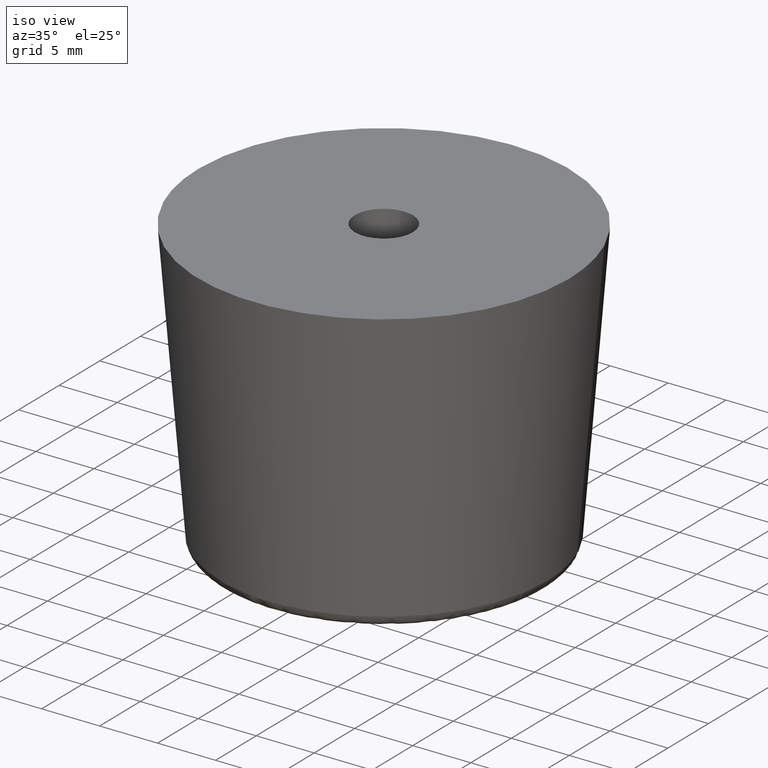
[diagram: clean part render]
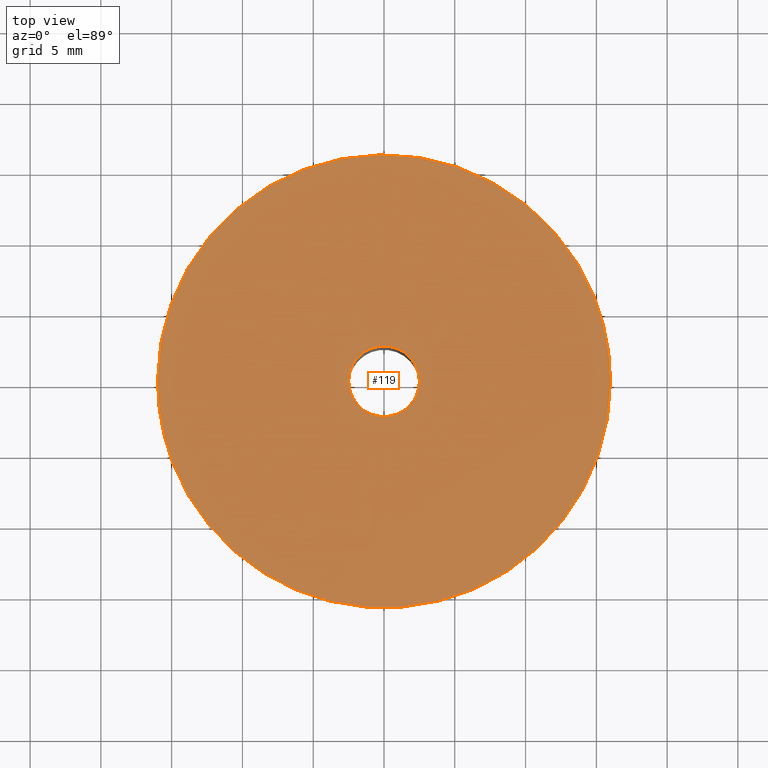
[diagram: tour spotlight — one face highlighted and labeled with its STEP entity id]
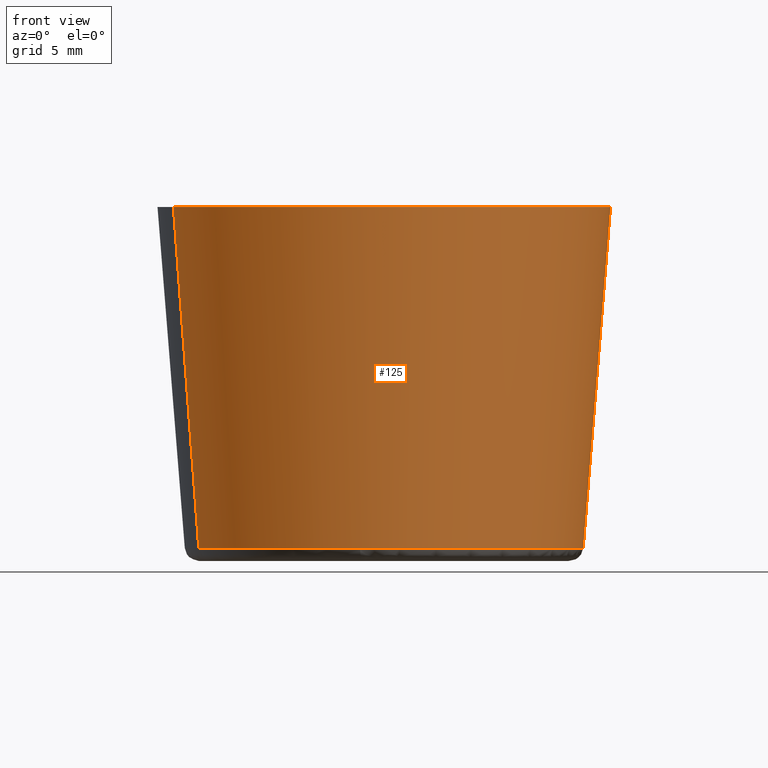
[diagram: tour spotlight — one face highlighted and labeled with its STEP entity id]
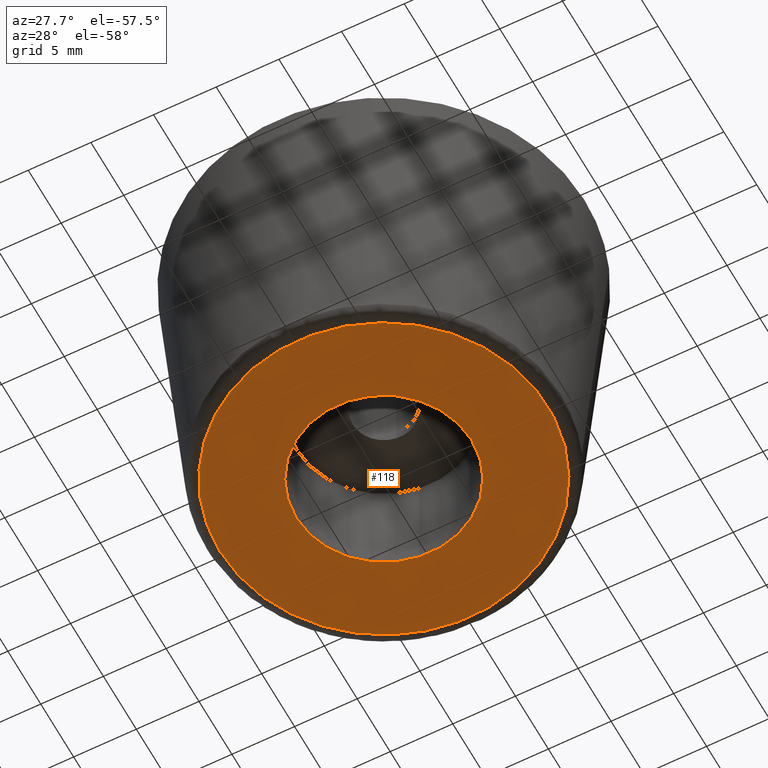
[diagram: tour spotlight — one face highlighted and labeled with its STEP entity id]
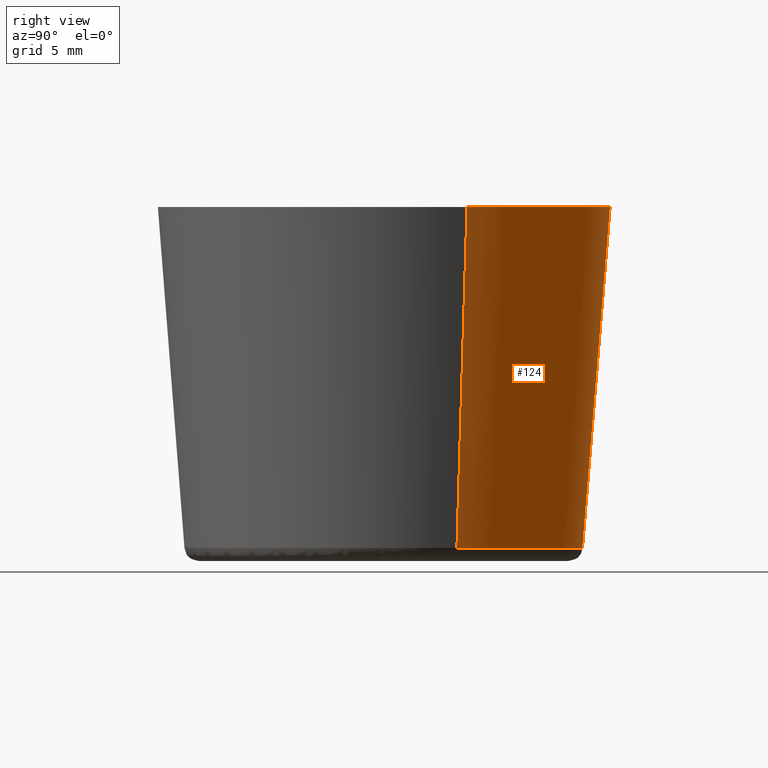
[diagram: tour spotlight — one face highlighted and labeled with its STEP entity id]
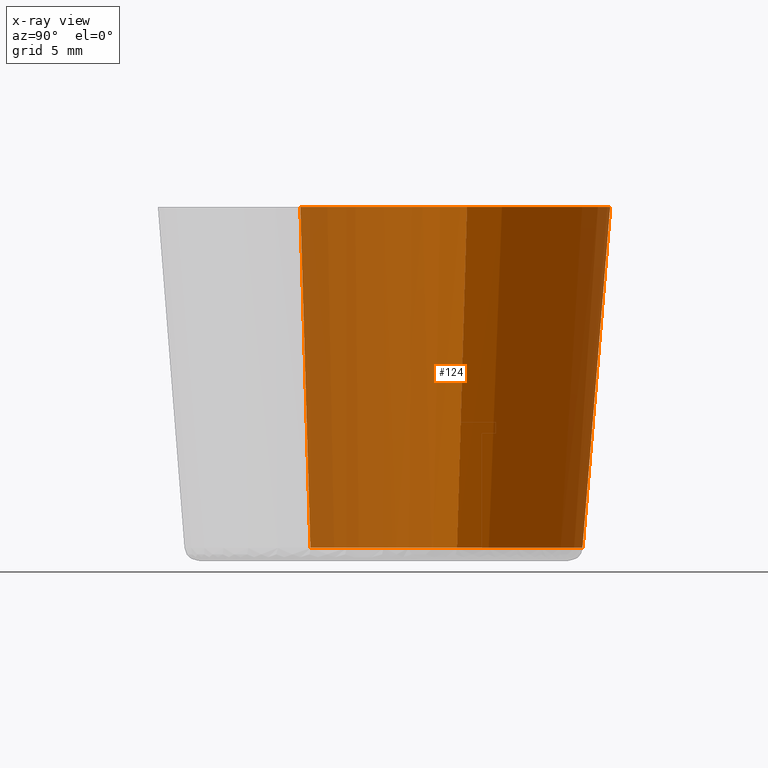
[diagram: x-ray of the same camera — body ghosted, this tour face saturated]
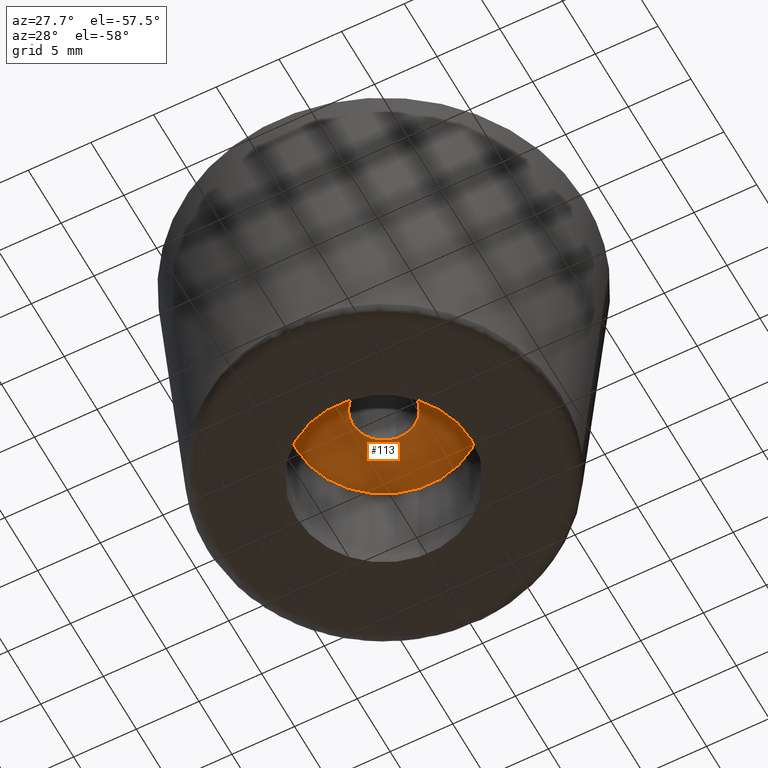
[diagram: tour spotlight — one face highlighted and labeled with its STEP entity id]
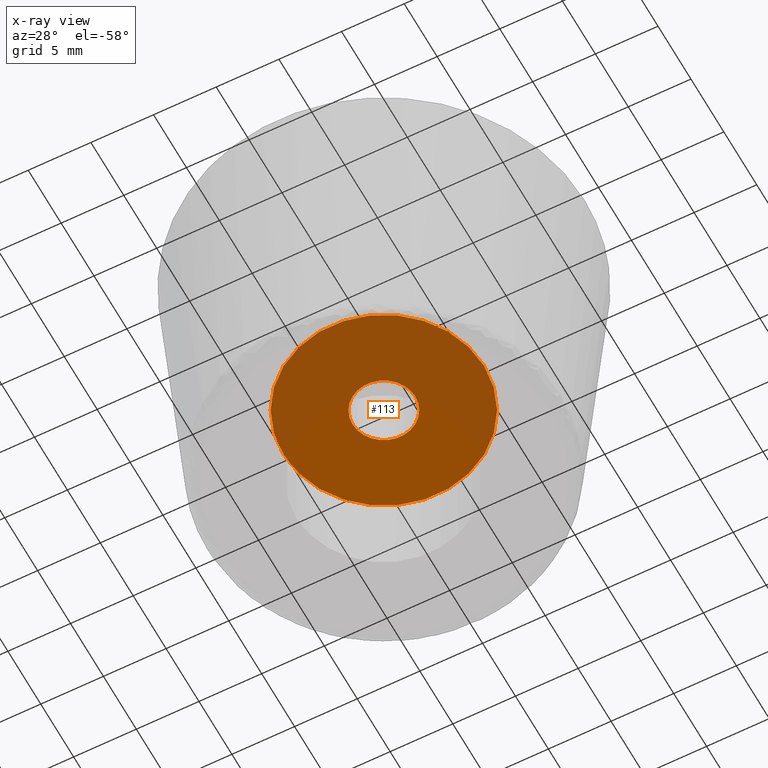
[diagram: x-ray of the same camera — body ghosted, this tour face saturated]
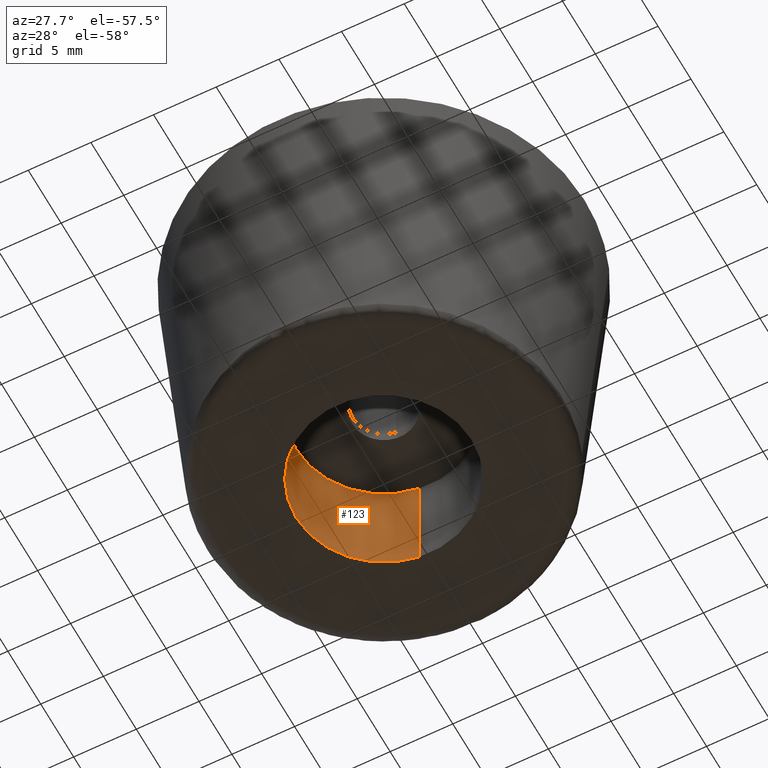
[diagram: tour spotlight — one face highlighted and labeled with its STEP entity id]
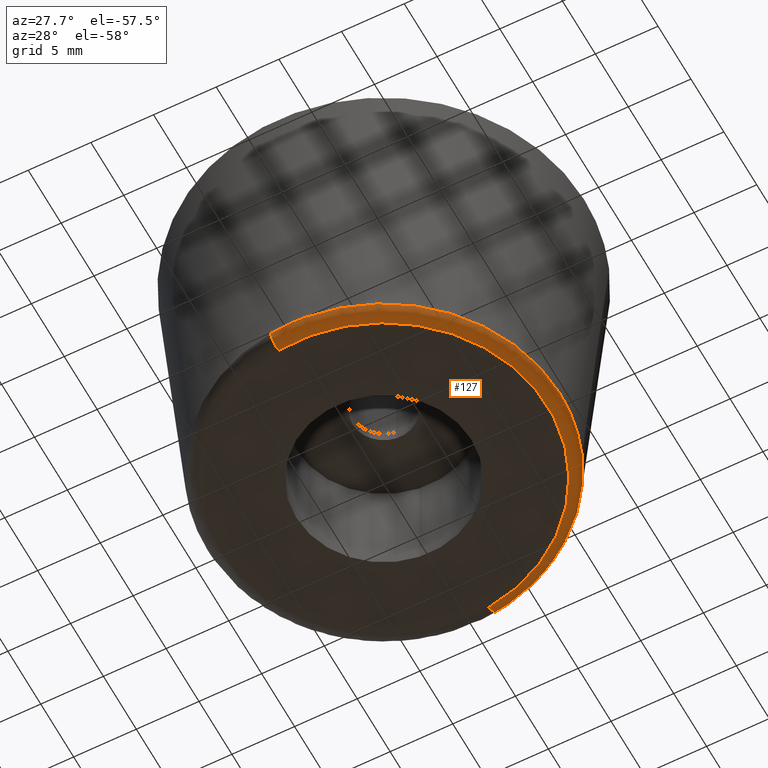
[diagram: tour spotlight — one face highlighted and labeled with its STEP entity id]
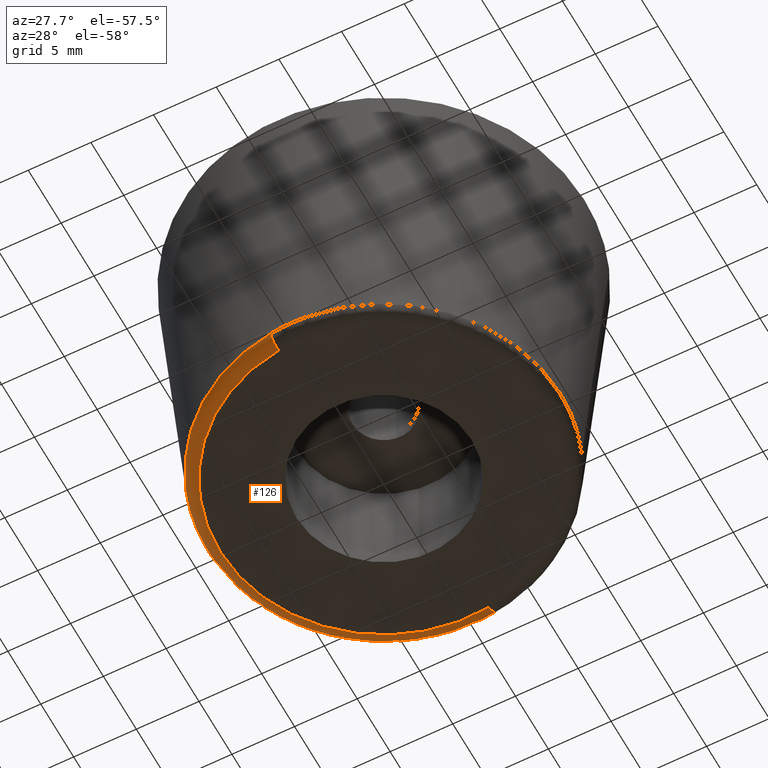
[diagram: tour spotlight — one face highlighted and labeled with its STEP entity id]
A machine part: a face-by-face anatomy tour. The part has 20 B-rep faces; the first image is the clean iso view, then the 8 largest visible faces are spotlighted one at a time (largest first), each with its STEP entity span.

Face 1 — top view, entity #119. In plain terms, the highlighted planar face has unit normal (0, 0, -1).
Definition (entity closure, byte-faithful):
#119=ADVANCED_FACE('',(#206,#207),#205,.F.);
#205=PLANE('',#379);
#206=FACE_OUTER_BOUND('',#380,.T.);
#207=FACE_BOUND('',#381,.T.);
#376=CARTESIAN_POINT('',(1.92000000000E+001,-2.01659269239E+001,2.50000000000E+001));
#377=DIRECTION('',(0.00000000000E+000,0.00000000000E+000,-1.00000000000E+000));
#378=DIRECTION('',(-1.00000000000E+000,0.00000000000E+000,0.00000000000E+000));
#379=AXIS2_PLACEMENT_3D('',#376,#377,#378);
#380=EDGE_LOOP('',(#536,#537,#538,#539,#540));
#381=EDGE_LOOP('',(#541,#542,#543));
#536=ORIENTED_EDGE('',*,*,#640,.F.);
#537=ORIENTED_EDGE('',*,*,#641,.F.);
#538=ORIENTED_EDGE('',*,*,#642,.F.);
#539=ORIENTED_EDGE('',*,*,#643,.F.);
#540=ORIENTED_EDGE('',*,*,#644,.F.);
#541=ORIENTED_EDGE('',*,*,#645,.T.);
#542=ORIENTED_EDGE('',*,*,#646,.T.);
#543=ORIENTED_EDGE('',*,*,#647,.T.);
#640=EDGE_CURVE('',#828,#829,#830,.T.);
#641=EDGE_CURVE('',#836,#828,#837,.T.);
#642=EDGE_CURVE('',#843,#836,#844,.T.);
#643=EDGE_CURVE('',#850,#843,#851,.T.);
#644=EDGE_CURVE('',#829,#850,#857,.T.);
#645=EDGE_CURVE('',#863,#864,#865,.T.);
#646=EDGE_CURVE('',#864,#871,#872,.T.);
#647=EDGE_CURVE('',#871,#863,#878,.T.);
#828=VERTEX_POINT('',#1182);
#829=VERTEX_POINT('',#1183);
#830=CIRCLE('',#1187,1.59999998255E+001);
#836=VERTEX_POINT('',#1188);
#837=CIRCLE('',#1192,1.59999997001E+001);
#843=VERTEX_POINT('',#1193);
#844=CIRCLE('',#1197,1.59999998620E+001);
#850=VERTEX_POINT('',#1198);
#851=CIRCLE('',#1202,1.60000000000E+001);
#857=CIRCLE('',#1206,1.60000000000E+001);
#863=VERTEX_POINT('',#1207);
#864=VERTEX_POINT('',#1208);
#865=CIRCLE('',#1212,2.50000000000E+000);
#871=VERTEX_POINT('',#1213);
#872=CIRCLE('',#1217,2.50000000000E+000);
#878=CIRCLE('',#1221,2.50000000000E+000);
#1182=CARTESIAN_POINT('',(-1.48778326349E+001,-5.88643275118E+000,2.49999978305E+001));
#1183=CARTESIAN_POINT('',(-1.60000000000E+001,0.00000000000E+000,2.50000000000E+001));
#1184=CARTESIAN_POINT('',(-1.74479442450E-007,4.38500372013E-007,2.49999989152E+001));
#1185=DIRECTION('',(-6.77973794369E-008,3.55637597805E-007,-1.00000000000E+000));
#1186=DIRECTION('',(9.29864538916E-001,3.67902078367E-001,6.77974324081E-008));
#1187=AXIS2_PLACEMENT_3D('',#1184,#1185,#1186);
#1188=CARTESIAN_POINT('',(1.25533634580E+000,-1.59506779035E+001,2.49999980163E+001));
#1189=CARTESIAN_POINT('',(-7.74154464978E-008,-1.47733397071E-007,2.49999979234E+001));
#1190=DIRECTION('',(8.29286189888E-009,-5.17328107062E-009,-1.00000000000E+000));
#1191=DIRECTION('',(-7.84585279213E-002,9.96917378420E-001,-5.80797953959E-009));
#1192=AXIS2_PLACEMENT_3D('',#1189,#1190,#1191);
#1193=CARTESIAN_POINT('',(1.60000000000E+001,0.00000000000E+000,2.50000000000E+001));
#1194=CARTESIAN_POINT('',(1.37992753224E-007,3.16270396539E-008,2.49999990082E+001));
#1195=DIRECTION('',(6.19894182662E-008,6.70597369245E-008,-1.00000000000E+000));
#1196=DIRECTION('',(-1.00000000000E+000,1.97668999541E-009,-6.19894181337E-008));
#1197=AXIS2_PLACEMENT_3D('',#1194,#1195,#1196);
#1198=CARTESIAN_POINT('',(1.48778292665E+001,5.88644173650E+000,2.50000000000E+001));
#1199=CARTESIAN_POINT('',(0.00000000000E+000,0.00000000000E+000,2.50000000000E+001));
#1200=DIRECTION('',(-0.00000000000E+000,-7.85046229342E-017,-1.00000000000E+000));
#1201=DIRECTION('',(1.00000000000E+000,-0.00000000000E+000,-0.00000000000E+000));
#1202=AXIS2_PLACEMENT_3D('',#1199,#1200,#1201);
#1203=CARTESIAN_POINT('',(0.00000000000E+000,0.00000000000E+000,2.50000000000E+001));
#1204=DIRECTION('',(-0.00000000000E+000,-7.85046229342E-017,-1.00000000000E+000));
#1205=DIRECTION('',(1.00000000000E+000,-0.00000000000E+000,-0.00000000000E+000));
#1206=AXIS2_PLACEMENT_3D('',#1203,#1204,#1205);
#1207=CARTESIAN_POINT('',(-2.50000000000E+000,4.44089209850E-016,2.50000000000E+001));
#1208=CARTESIAN_POINT('',(-2.95514653005E-001,2.48247277726E+000,2.50000000000E+001));
#1209=CARTESIAN_POINT('',(1.11022302463E-015,6.66133814775E-016,2.50000000000E+001));
#1210=DIRECTION('',(7.18398078852E-014,1.28325185401E-014,-1.00000000000E+000));
#1211=DIRECTION('',(-1.00000000000E+000,2.77555756156E-016,-7.18398078852E-014));
#1212=AXIS2_PLACEMENT_3D('',#1209,#1210,#1211);
#1213=CARTESIAN_POINT('',(2.95084678797E-001,-2.48252392382E+000,2.50000000000E+001));
#1214=CARTESIAN_POINT('',(1.11022302463E-015,6.66133814775E-016,2.50000000000E+001));
#1215=DIRECTION('',(7.18398078852E-014,1.28325185401E-014,-1.00000000000E+000));
#1216=DIRECTION('',(-1.00000000000E+000,2.77555756156E-016,-7.18398078852E-014));
#1217=AXIS2_PLACEMENT_3D('',#1214,#1215,#1216);
#1218=CARTESIAN_POINT('',(1.11022302463E-015,6.66133814775E-016,2.50000000000E+001));
#1219=DIRECTION('',(7.18398078852E-014,1.28325185401E-014,-1.00000000000E+000));
#1220=DIRECTION('',(-1.00000000000E+000,2.77555756156E-016,-7.18398078852E-014));
#1221=AXIS2_PLACEMENT_3D('',#1218,#1219,#1220);

Face 2 — front view, entity #125. In plain terms, the highlighted face is a freeform B-spline surface patch.
Definition (entity closure, byte-faithful):
#125=ADVANCED_FACE('',(#269),#268,.T.);
#268=( BOUNDED_SURFACE() B_SPLINE_SURFACE( 2,1,((#415,#416),(#417,#418),(#419,#420),(#421,#422),(#423,#424)), .UNSPECIFIED.,.F.,.F.,.F.) B_SPLINE_SURFACE_WITH_KNOTS((3,2,3),(2,2),(0.00000000000E+000,5.00000000000E-001,1.00000000000E+000),(0.00000000000E+000,1.00000000000E+000), .UNSPECIFIED. ) GEOMETRIC_REPRESENTATION_ITEM() RATIONAL_B_SPLINE_SURFACE(((1.00000000000E+000,1.00000000000E+000),(7.07106781187E-001,7.07106781187E-001),(1.00000000000E+000,1.00000000000E+000),(7.07106781187E-001,7.07106781187E-001),(1.00000000000E+000,1.00000000000E+000))) REPRESENTATION_ITEM('') SURFACE() );
#269=FACE_OUTER_BOUND('',#425,.T.);
#415=CARTESIAN_POINT('',(-1.30865583217E+001,-5.17771821730E+000,9.20252663902E-001));
#416=CARTESIAN_POINT('',(-1.48778930171E+001,-5.88646272125E+000,2.50008374974E+001));
#417=CARTESIAN_POINT('',(-7.90884010436E+000,-1.82642765390E+001,9.20252663902E-001));
#418=CARTESIAN_POINT('',(-8.99143029589E+000,-2.07643557384E+001,2.50008374974E+001));
#419=CARTESIAN_POINT('',(5.17771821730E+000,-1.30865583217E+001,9.20252663902E-001));
#420=CARTESIAN_POINT('',(5.88646272125E+000,-1.48778930171E+001,2.50008374974E+001));
#421=CARTESIAN_POINT('',(1.82642765390E+001,-7.90884010436E+000,9.20252663902E-001));
#422=CARTESIAN_POINT('',(2.07643557384E+001,-8.99143029589E+000,2.50008374974E+001));
#423=CARTESIAN_POINT('',(1.30865583217E+001,5.17771821730E+000,9.20252663902E-001));
#424=CARTESIAN_POINT('',(1.48778930171E+001,5.88646272125E+000,2.50008374974E+001));
#425=EDGE_LOOP('',(#574,#575,#576,#577,#578,#579,#580,#581,#582));
#574=ORIENTED_EDGE('',*,*,#668,.F.);
#575=ORIENTED_EDGE('',*,*,#669,.F.);
#576=ORIENTED_EDGE('',*,*,#670,.F.);
#577=ORIENTED_EDGE('',*,*,#671,.F.);
#578=ORIENTED_EDGE('',*,*,#662,.T.);
#579=ORIENTED_EDGE('',*,*,#643,.T.);
#580=ORIENTED_EDGE('',*,*,#642,.T.);
#581=ORIENTED_EDGE('',*,*,#641,.T.);
#582=ORIENTED_EDGE('',*,*,#667,.F.);
#641=EDGE_CURVE('',#836,#828,#837,.T.);
#642=EDGE_CURVE('',#843,#836,#844,.T.);
#643=EDGE_CURVE('',#850,#843,#851,.T.);
#662=EDGE_CURVE('',#980,#850,#981,.T.);
#667=EDGE_CURVE('',#1008,#828,#1015,.T.);
#668=EDGE_CURVE('',#1021,#1008,#1022,.T.);
#669=EDGE_CURVE('',#1028,#1021,#1029,.T.);
#670=EDGE_CURVE('',#1035,#1028,#1036,.T.);
#671=EDGE_CURVE('',#980,#1035,#1042,.T.);
#828=VERTEX_POINT('',#1182);
#836=VERTEX_POINT('',#1188);
#837=CIRCLE('',#1192,1.59999997001E+001);
#843=VERTEX_POINT('',#1193);
#844=CIRCLE('',#1197,1.59999998620E+001);
#850=VERTEX_POINT('',#1198);
#851=CIRCLE('',#1202,1.60000000000E+001);
#980=VERTEX_POINT('',#1286);
#981=(BOUNDED_CURVE() B_SPLINE_CURVE(1,(#1287,#1288),.UNSPECIFIED.,.F.,.F.) B_SPLINE_CURVE_WITH_KNOTS((2,2),(9.68585477581E-008,9.99965222182E-001),.UNSPECIFIED.) CURVE() GEOMETRIC_REPRESENTATION_ITEM() RATIONAL_B_SPLINE_CURVE((1.00000000000E+000,1.00000000000E+000)) REPRESENTATION_ITEM('') );
#1008=VERTEX_POINT('',#1304);
#1015=(BOUNDED_CURVE() B_SPLINE_CURVE(1,(#1309,#1310),.UNSPECIFIED.,.F.,.F.) B_SPLINE_CURVE_WITH_KNOTS((2,2),(0.00000000000E+000,1.00000000000E+000),.UNSPECIFIED.) CURVE() GEOMETRIC_REPRESENTATION_ITEM() RATIONAL_B_SPLINE_CURVE((7.50000000000E-001,7.50000000000E-001)) REPRESENTATION_ITEM('') );
#1021=VERTEX_POINT('',#1311);
#1022=CIRCLE('',#1315,1.40736197312E+001);
#1028=VERTEX_POINT('',#1316);
#1029=CIRCLE('',#1320,1.40736197312E+001);
#1035=VERTEX_POINT('',#1321);
#1036=CIRCLE('',#1325,1.40736198375E+001);
#1042=CIRCLE('',#1329,1.40736200000E+001);
#1182=CARTESIAN_POINT('',(-1.48778326349E+001,-5.88643275118E+000,2.49999978305E+001));
#1188=CARTESIAN_POINT('',(1.25533634580E+000,-1.59506779035E+001,2.49999980163E+001));
#1189=CARTESIAN_POINT('',(-7.74154464978E-008,-1.47733397071E-007,2.49999979234E+001));
#1190=DIRECTION('',(8.29286189888E-009,-5.17328107062E-009,-1.00000000000E+000));
#1191=DIRECTION('',(-7.84585279213E-002,9.96917378420E-001,-5.80797953959E-009));
#1192=AXIS2_PLACEMENT_3D('',#1189,#1190,#1191);
#1193=CARTESIAN_POINT('',(1.60000000000E+001,0.00000000000E+000,2.50000000000E+001));
#1194=CARTESIAN_POINT('',(1.37992753224E-007,3.16270396539E-008,2.49999990082E+001));
#1195=DIRECTION('',(6.19894182662E-008,6.70597369245E-008,-1.00000000000E+000));
#1196=DIRECTION('',(-1.00000000000E+000,1.97668999541E-009,-6.19894181337E-008));
#1197=AXIS2_PLACEMENT_3D('',#1194,#1195,#1196);
#1198=CARTESIAN_POINT('',(1.48778292665E+001,5.88644173650E+000,2.50000000000E+001));
#1199=CARTESIAN_POINT('',(0.00000000000E+000,0.00000000000E+000,2.50000000000E+001));
#1200=DIRECTION('',(-0.00000000000E+000,-7.85046229342E-017,-1.00000000000E+000));
#1201=DIRECTION('',(1.00000000000E+000,-0.00000000000E+000,-0.00000000000E+000));
#1202=AXIS2_PLACEMENT_3D('',#1199,#1200,#1201);
#1286=CARTESIAN_POINT('',(1.30865568422E+001,5.17772246466E+000,9.20254999989E-001));
#1287=CARTESIAN_POINT('',(1.30865583217E+001,5.17771821730E+000,9.20252663902E-001));
#1288=CARTESIAN_POINT('',(1.48778307184E+001,5.88643807266E+000,2.50000000271E+001));
#1304=CARTESIAN_POINT('',(-1.30865597597E+001,-5.17771478607E+000,9.20253598759E-001));
#1309=CARTESIAN_POINT('',(-1.30865583217E+001,-5.17771821730E+000,9.20252663902E-001));
#1310=CARTESIAN_POINT('',(-1.48778930171E+001,-5.88646272125E+000,2.50008374974E+001));
#1311=CARTESIAN_POINT('',(-1.68555779672E+000,-1.39723179996E+001,9.20252797914E-001));
#1312=CARTESIAN_POINT('',(-1.31874783094E-007,-9.24938365898E-008,9.20253131331E-001));
#1313=DIRECTION('',(-4.74229771609E-008,2.95835565420E-008,-1.00000000000E+000));
#1314=DIRECTION('',(-7.84583298285E-002,9.96917394010E-001,3.32130896769E-008));
#1315=AXIS2_PLACEMENT_3D('',#1312,#1313,#1314);
#1316=CARTESIAN_POINT('',(1.10419256688E+000,-1.40302363993E+001,9.20252663902E-001));
#1317=CARTESIAN_POINT('',(-1.31874783094E-007,-9.24938365898E-008,9.20253131331E-001));
#1318=DIRECTION('',(-4.74229771609E-008,2.95835565420E-008,-1.00000000000E+000));
#1319=DIRECTION('',(-7.84583298285E-002,9.96917394010E-001,3.32130896769E-008));
#1320=AXIS2_PLACEMENT_3D('',#1317,#1318,#1319);
#1321=CARTESIAN_POINT('',(1.40736200000E+001,0.00000000000E+000,9.20255000000E-001));
#1322=CARTESIAN_POINT('',(1.62510813695E-007,3.72464583620E-008,9.20253831951E-001));
#1323=DIRECTION('',(8.29956284308E-008,8.97840949610E-008,-1.00000000000E+000));
#1324=DIRECTION('',(-1.00000000000E+000,2.64654430005E-009,-8.29956281932E-008));
#1325=AXIS2_PLACEMENT_3D('',#1322,#1323,#1324);
#1326=CARTESIAN_POINT('',(1.51549883753E-011,2.15560902461E-012,9.20254999841E-001));
#1327=DIRECTION('',(1.12888503583E-011,-6.12524991265E-019,-1.00000000000E+000));
#1328=DIRECTION('',(-1.19767182573E-001,-9.92802005426E-001,-1.35203319379E-012));
#1329=AXIS2_PLACEMENT_3D('',#1326,#1327,#1328);

Face 3 — auxiliary view, entity #118. In plain terms, the highlighted planar face has unit normal (0, 0, 1).
Definition (entity closure, byte-faithful):
#118=ADVANCED_FACE('',(#195,#196),#194,.F.);
#194=PLANE('',#373);
#195=FACE_OUTER_BOUND('',#374,.T.);
#196=FACE_BOUND('',#375,.T.);
#370=CARTESIAN_POINT('',(-1.69998461171E+001,-2.71796281788E+001,0.00000000000E+000));
#371=DIRECTION('',(0.00000000000E+000,0.00000000000E+000,1.00000000000E+000));
#372=DIRECTION('',(1.00000000000E+000,0.00000000000E+000,0.00000000000E+000));
#373=AXIS2_PLACEMENT_3D('',#370,#371,#372);
#374=EDGE_LOOP('',(#530,#531,#532));
#375=EDGE_LOOP('',(#533,#534,#535));
#530=ORIENTED_EDGE('',*,*,#634,.T.);
#531=ORIENTED_EDGE('',*,*,#635,.T.);
#532=ORIENTED_EDGE('',*,*,#636,.T.);
#533=ORIENTED_EDGE('',*,*,#637,.F.);
#534=ORIENTED_EDGE('',*,*,#638,.F.);
#535=ORIENTED_EDGE('',*,*,#639,.F.);
#634=EDGE_CURVE('',#786,#787,#788,.T.);
#635=EDGE_CURVE('',#787,#794,#795,.T.);
#636=EDGE_CURVE('',#794,#786,#801,.T.);
#637=EDGE_CURVE('',#807,#808,#809,.T.);
#638=EDGE_CURVE('',#815,#807,#816,.T.);
#639=EDGE_CURVE('',#808,#815,#822,.T.);
#786=VERTEX_POINT('',#1152);
#787=VERTEX_POINT('',#1153);
#788=CIRCLE('',#1157,1.30768047046E+001);
#794=VERTEX_POINT('',#1158);
#795=CIRCLE('',#1162,1.30768047046E+001);
#801=CIRCLE('',#1166,1.30768047046E+001);
#807=VERTEX_POINT('',#1167);
#808=VERTEX_POINT('',#1168);
#809=CIRCLE('',#1172,6.99999999999E+000);
#815=VERTEX_POINT('',#1173);
#816=CIRCLE('',#1177,6.99999999999E+000);
#822=CIRCLE('',#1181,6.99999999999E+000);
#1152=CARTESIAN_POINT('',(-1.30768047055E+001,3.33066907388E-015,4.70022921029E-016));
#1153=CARTESIAN_POINT('',(1.56653333509E+000,1.29826343469E+001,2.06858307237E-016));
#1154=CARTESIAN_POINT('',(-8.84798900813E-010,-1.37152511570E-010,2.35011460514E-016));
#1155=DIRECTION('',(-1.79716273068E-017,8.24894706645E-034,-1.00000000000E+000));
#1156=DIRECTION('',(-1.00000000000E+000,1.04888459029E-011,1.79716273068E-017));
#1157=AXIS2_PLACEMENT_3D('',#1154,#1155,#1156);
#1158=CARTESIAN_POINT('',(-1.56617205657E+000,-1.29826779355E+001,2.63158120998E-016));
#1159=CARTESIAN_POINT('',(-8.84798900813E-010,-1.37152511570E-010,2.35011460514E-016));
#1160=DIRECTION('',(-1.79716273068E-017,8.24894706645E-034,-1.00000000000E+000));
#1161=DIRECTION('',(-1.00000000000E+000,1.04888459029E-011,1.79716273068E-017));
#1162=AXIS2_PLACEMENT_3D('',#1159,#1160,#1161);
#1163=CARTESIAN_POINT('',(-8.84798900813E-010,-1.37152511570E-010,2.35011460514E-016));
#1164=DIRECTION('',(-1.79716273068E-017,8.24894706645E-034,-1.00000000000E+000));
#1165=DIRECTION('',(-1.00000000000E+000,1.04888459029E-011,1.79716273068E-017));
#1166=AXIS2_PLACEMENT_3D('',#1163,#1164,#1165);
#1167=CARTESIAN_POINT('',(8.26233601588E-001,-6.95106740260E+000,8.36601376466E-014));
#1168=CARTESIAN_POINT('',(-6.99999999999E+000,-3.77475828373E-015,7.61800837228E-013));
#1169=CARTESIAN_POINT('',(5.68434188608E-012,2.58104648765E-012,6.27496144932E-014));
#1170=DIRECTION('',(-9.98644603908E-014,-1.48785632396E-014,-1.00000000000E+000));
#1171=DIRECTION('',(-1.00000000000E+000,-3.68899355507E-013,9.98644603908E-014));
#1172=AXIS2_PLACEMENT_3D('',#1169,#1170,#1171);
#1173=CARTESIAN_POINT('',(-8.27437528304E-001,6.95092419299E+000,4.19614515861E-014));
#1174=CARTESIAN_POINT('',(5.68434188608E-012,2.58104648765E-012,6.27496144932E-014));
#1175=DIRECTION('',(-9.98644603908E-014,-1.48785632396E-014,-1.00000000000E+000));
#1176=DIRECTION('',(-1.00000000000E+000,-3.68899355507E-013,9.98644603908E-014));
#1177=AXIS2_PLACEMENT_3D('',#1174,#1175,#1176);
#1178=CARTESIAN_POINT('',(5.68434188608E-012,2.58104648765E-012,6.27496144932E-014));
#1179=DIRECTION('',(-9.98644603908E-014,-1.48785632396E-014,-1.00000000000E+000));
#1180=DIRECTION('',(-1.00000000000E+000,-3.68899355507E-013,9.98644603908E-014));
#1181=AXIS2_PLACEMENT_3D('',#1178,#1179,#1180);

Face 4 — right view, entity #124. An x-ray twin of the same camera follows (body ghosted, this face saturated) — the face is partly hidden behind the body. In plain terms, the highlighted face is a freeform B-spline surface patch.
Definition (entity closure, byte-faithful):
#124=ADVANCED_FACE('',(#259),#258,.T.);
#258=( BOUNDED_SURFACE() B_SPLINE_SURFACE( 2,1,((#404,#405),(#406,#407),(#408,#409),(#410,#411),(#412,#413)), .UNSPECIFIED.,.F.,.F.,.F.) B_SPLINE_SURFACE_WITH_KNOTS((3,2,3),(2,2),(0.00000000000E+000,5.00000000000E-001,1.00000000000E+000),(0.00000000000E+000,1.00000000000E+000), .UNSPECIFIED. ) GEOMETRIC_REPRESENTATION_ITEM() RATIONAL_B_SPLINE_SURFACE(((1.00000000000E+000,1.00000000000E+000),(7.07106781187E-001,7.07106781187E-001),(1.00000000000E+000,1.00000000000E+000),(7.07106781187E-001,7.07106781187E-001),(1.00000000000E+000,1.00000000000E+000))) REPRESENTATION_ITEM('') SURFACE() );
#259=FACE_OUTER_BOUND('',#414,.T.);
#404=CARTESIAN_POINT('',(1.30865583217E+001,5.17771821730E+000,9.20252663902E-001));
#405=CARTESIAN_POINT('',(1.48778930171E+001,5.88646272125E+000,2.50008374974E+001));
#406=CARTESIAN_POINT('',(7.90884010436E+000,1.82642765390E+001,9.20252663902E-001));
#407=CARTESIAN_POINT('',(8.99143029589E+000,2.07643557384E+001,2.50008374974E+001));
#408=CARTESIAN_POINT('',(-5.17771821730E+000,1.30865583217E+001,9.20252663902E-001));
#409=CARTESIAN_POINT('',(-5.88646272125E+000,1.48778930171E+001,2.50008374974E+001));
#410=CARTESIAN_POINT('',(-1.82642765390E+001,7.90884010436E+000,9.20252663902E-001));
#411=CARTESIAN_POINT('',(-2.07643557384E+001,8.99143029589E+000,2.50008374974E+001));
#412=CARTESIAN_POINT('',(-1.30865583217E+001,-5.17771821730E+000,9.20252663902E-001));
#413=CARTESIAN_POINT('',(-1.48778930171E+001,-5.88646272125E+000,2.50008374974E+001));
#414=EDGE_LOOP('',(#566,#567,#568,#569,#570,#571,#572,#573));
#566=ORIENTED_EDGE('',*,*,#640,.T.);
#567=ORIENTED_EDGE('',*,*,#644,.T.);
#568=ORIENTED_EDGE('',*,*,#662,.F.);
#569=ORIENTED_EDGE('',*,*,#663,.F.);
#570=ORIENTED_EDGE('',*,*,#664,.F.);
#571=ORIENTED_EDGE('',*,*,#665,.F.);
#572=ORIENTED_EDGE('',*,*,#666,.F.);
#573=ORIENTED_EDGE('',*,*,#667,.T.);
#640=EDGE_CURVE('',#828,#829,#830,.T.);
#644=EDGE_CURVE('',#829,#850,#857,.T.);
#662=EDGE_CURVE('',#980,#850,#981,.T.);
#663=EDGE_CURVE('',#987,#980,#988,.T.);
#664=EDGE_CURVE('',#994,#987,#995,.T.);
#665=EDGE_CURVE('',#1001,#994,#1002,.T.);
#666=EDGE_CURVE('',#1008,#1001,#1009,.T.);
#667=EDGE_CURVE('',#1008,#828,#1015,.T.);
#828=VERTEX_POINT('',#1182);
#829=VERTEX_POINT('',#1183);
#830=CIRCLE('',#1187,1.59999998255E+001);
#850=VERTEX_POINT('',#1198);
#857=CIRCLE('',#1206,1.60000000000E+001);
#980=VERTEX_POINT('',#1286);
#981=(BOUNDED_CURVE() B_SPLINE_CURVE(1,(#1287,#1288),.UNSPECIFIED.,.F.,.F.) B_SPLINE_CURVE_WITH_KNOTS((2,2),(9.68585477581E-008,9.99965222182E-001),.UNSPECIFIED.) CURVE() GEOMETRIC_REPRESENTATION_ITEM() RATIONAL_B_SPLINE_CURVE((1.00000000000E+000,1.00000000000E+000)) REPRESENTATION_ITEM('') );
#987=VERTEX_POINT('',#1289);
#988=CIRCLE('',#1293,1.40736200000E+001);
#994=VERTEX_POINT('',#1294);
#995=CIRCLE('',#1298,1.40736200000E+001);
#1001=VERTEX_POINT('',#1299);
#1002=CIRCLE('',#1303,1.40736199964E+001);
#1008=VERTEX_POINT('',#1304);
#1009=CIRCLE('',#1308,1.40736198873E+001);
#1015=(BOUNDED_CURVE() B_SPLINE_CURVE(1,(#1309,#1310),.UNSPECIFIED.,.F.,.F.) B_SPLINE_CURVE_WITH_KNOTS((2,2),(0.00000000000E+000,1.00000000000E+000),.UNSPECIFIED.) CURVE() GEOMETRIC_REPRESENTATION_ITEM() RATIONAL_B_SPLINE_CURVE((7.50000000000E-001,7.50000000000E-001)) REPRESENTATION_ITEM('') );
#1182=CARTESIAN_POINT('',(-1.48778326349E+001,-5.88643275118E+000,2.49999978305E+001));
#1183=CARTESIAN_POINT('',(-1.60000000000E+001,0.00000000000E+000,2.50000000000E+001));
#1184=CARTESIAN_POINT('',(-1.74479442450E-007,4.38500372013E-007,2.49999989152E+001));
#1185=DIRECTION('',(-6.77973794369E-008,3.55637597805E-007,-1.00000000000E+000));
#1186=DIRECTION('',(9.29864538916E-001,3.67902078367E-001,6.77974324081E-008));
#1187=AXIS2_PLACEMENT_3D('',#1184,#1185,#1186);
#1198=CARTESIAN_POINT('',(1.48778292665E+001,5.88644173650E+000,2.50000000000E+001));
#1203=CARTESIAN_POINT('',(0.00000000000E+000,0.00000000000E+000,2.50000000000E+001));
#1204=DIRECTION('',(-0.00000000000E+000,-7.85046229342E-017,-1.00000000000E+000));
#1205=DIRECTION('',(1.00000000000E+000,-0.00000000000E+000,-0.00000000000E+000));
#1206=AXIS2_PLACEMENT_3D('',#1203,#1204,#1205);
#1286=CARTESIAN_POINT('',(1.30865568422E+001,5.17772246466E+000,9.20254999989E-001));
#1287=CARTESIAN_POINT('',(1.30865583217E+001,5.17771821730E+000,9.20252663902E-001));
#1288=CARTESIAN_POINT('',(1.48778307184E+001,5.88643807266E+000,2.50000000271E+001));
#1289=CARTESIAN_POINT('',(1.68555781602E+000,1.39723181596E+001,9.20254999860E-001));
#1290=CARTESIAN_POINT('',(1.51549883753E-011,2.15560902461E-012,9.20254999841E-001));
#1291=DIRECTION('',(1.12888503583E-011,-6.12524991265E-019,-1.00000000000E+000));
#1292=DIRECTION('',(-1.19767182573E-001,-9.92802005426E-001,-1.35203319379E-012));
#1293=AXIS2_PLACEMENT_3D('',#1290,#1291,#1292);
#1294=CARTESIAN_POINT('',(-1.40458489257E+001,8.83689911468E-001,9.20254999915E-001));
#1295=CARTESIAN_POINT('',(-1.50039980440E-011,1.33111299760E-011,9.20254999684E-001));
#1296=DIRECTION('',(-1.59516430849E-011,7.44206624908E-012,-1.00000000000E+000));
#1297=DIRECTION('',(9.98026728428E-001,-6.27905195291E-002,-1.63874573673E-011));
#1298=AXIS2_PLACEMENT_3D('',#1295,#1296,#1297);
#1299=CARTESIAN_POINT('',(-1.40736200000E+001,0.00000000000E+000,9.20255000000E-001));
#1300=CARTESIAN_POINT('',(-3.60956242673E-009,5.01193531122E-012,9.20254956963E-001));
#1301=DIRECTION('',(-3.05795979295E-009,-1.22719118627E-016,-1.00000000000E+000));
#1302=DIRECTION('',(1.00000000000E+000,3.56122682899E-013,-3.05795979295E-009));
#1303=AXIS2_PLACEMENT_3D('',#1300,#1301,#1302);
#1304=CARTESIAN_POINT('',(-1.30865597597E+001,-5.17771478607E+000,9.20253598759E-001));
#1305=CARTESIAN_POINT('',(-1.12692738696E-007,2.83216758046E-007,9.20254299380E-001));
#1306=DIRECTION('',(-4.97825386195E-008,2.61138892715E-007,-1.00000000000E+000));
#1307=DIRECTION('',(9.29864509043E-001,3.67902153870E-001,4.97825452567E-008));
#1308=AXIS2_PLACEMENT_3D('',#1305,#1306,#1307);
#1309=CARTESIAN_POINT('',(-1.30865583217E+001,-5.17771821730E+000,9.20252663902E-001));
#1310=CARTESIAN_POINT('',(-1.48778930171E+001,-5.88646272125E+000,2.50008374974E+001));

Face 5 — auxiliary view, entity #113. An x-ray twin of the same camera follows (body ghosted, this face saturated) — the face is partly hidden behind the body. In plain terms, the highlighted planar face has unit normal (0, 0, 1).
Definition (entity closure, byte-faithful):
#113=ADVANCED_FACE('',(#144,#145),#143,.F.);
#143=PLANE('',#347);
#144=FACE_OUTER_BOUND('',#348,.T.);
#145=FACE_BOUND('',#349,.T.);
#344=CARTESIAN_POINT('',(-1.04000000000E+001,-1.66276877527E+001,9.00000000000E+000));
#345=DIRECTION('',(0.00000000000E+000,0.00000000000E+000,1.00000000000E+000));
#346=DIRECTION('',(1.00000000000E+000,0.00000000000E+000,0.00000000000E+000));
#347=AXIS2_PLACEMENT_3D('',#344,#345,#346);
#348=EDGE_LOOP('',(#504,#505,#506));
#349=EDGE_LOOP('',(#507,#508,#509));
#504=ORIENTED_EDGE('',*,*,#624,.T.);
#505=ORIENTED_EDGE('',*,*,#625,.T.);
#506=ORIENTED_EDGE('',*,*,#626,.T.);
#507=ORIENTED_EDGE('',*,*,#627,.F.);
#508=ORIENTED_EDGE('',*,*,#628,.F.);
#509=ORIENTED_EDGE('',*,*,#629,.F.);
#624=EDGE_CURVE('',#720,#721,#722,.T.);
#625=EDGE_CURVE('',#721,#728,#729,.T.);
#626=EDGE_CURVE('',#728,#720,#735,.T.);
#627=EDGE_CURVE('',#741,#742,#743,.T.);
#628=EDGE_CURVE('',#749,#741,#750,.T.);
#629=EDGE_CURVE('',#742,#749,#756,.T.);
#720=VERTEX_POINT('',#1114);
#721=VERTEX_POINT('',#1115);
#722=CIRCLE('',#1119,8.00000000000E+000);
#728=VERTEX_POINT('',#1120);
#729=CIRCLE('',#1124,8.00000000000E+000);
#735=CIRCLE('',#1128,8.00000000000E+000);
#741=VERTEX_POINT('',#1129);
#742=VERTEX_POINT('',#1130);
#743=CIRCLE('',#1134,2.50000000000E+000);
#749=VERTEX_POINT('',#1135);
#750=CIRCLE('',#1139,2.50000000000E+000);
#756=CIRCLE('',#1143,2.50000000000E+000);
#1114=CARTESIAN_POINT('',(-8.00000000000E+000,1.66533453694E-015,9.00000000000E+000));
#1115=CARTESIAN_POINT('',(-9.45646880192E-001,7.94391288837E+000,9.00000000000E+000));
#1116=CARTESIAN_POINT('',(1.05604414102E-012,4.81836792687E-013,9.00000000000E+000));
#1117=DIRECTION('',(-2.71252747256E-013,-3.98450480078E-014,-1.00000000000E+000));
#1118=DIRECTION('',(-1.00000000000E+000,-5.96606097858E-014,2.71252747256E-013));
#1119=AXIS2_PLACEMENT_3D('',#1116,#1117,#1118);
#1120=CARTESIAN_POINT('',(9.44273846965E-001,-7.94407621451E+000,9.00000000000E+000));
#1121=CARTESIAN_POINT('',(1.05604414102E-012,4.81836792687E-013,9.00000000000E+000));
#1122=DIRECTION('',(-2.71252747256E-013,-3.98450480078E-014,-1.00000000000E+000));
#1123=DIRECTION('',(-1.00000000000E+000,-5.96606097858E-014,2.71252747256E-013));
#1124=AXIS2_PLACEMENT_3D('',#1121,#1122,#1123);
#1125=CARTESIAN_POINT('',(1.05604414102E-012,4.81836792687E-013,9.00000000000E+000));
#1126=DIRECTION('',(-2.71252747256E-013,-3.98450480078E-014,-1.00000000000E+000));
#1127=DIRECTION('',(-1.00000000000E+000,-5.96606097858E-014,2.71252747256E-013));
#1128=AXIS2_PLACEMENT_3D('',#1125,#1126,#1127);
#1129=CARTESIAN_POINT('',(2.95084678797E-001,-2.48252392382E+000,9.00000000000E+000));
#1130=CARTESIAN_POINT('',(-2.50000000000E+000,4.44089209850E-016,9.00000000000E+000));
#1131=CARTESIAN_POINT('',(1.11022302463E-015,6.66133814775E-016,9.00000000000E+000));
#1132=DIRECTION('',(1.09761820555E-014,1.30468561902E-015,-1.00000000000E+000));
#1133=DIRECTION('',(-1.00000000000E+000,2.77555756156E-016,-1.09761820555E-014));
#1134=AXIS2_PLACEMENT_3D('',#1131,#1132,#1133);
#1135=CARTESIAN_POINT('',(-2.95514653005E-001,2.48247277726E+000,9.00000000000E+000));
#1136=CARTESIAN_POINT('',(1.11022302463E-015,6.66133814775E-016,9.00000000000E+000));
#1137=DIRECTION('',(1.09761820555E-014,1.30468561902E-015,-1.00000000000E+000));
#1138=DIRECTION('',(-1.00000000000E+000,2.77555756156E-016,-1.09761820555E-014));
#1139=AXIS2_PLACEMENT_3D('',#1136,#1137,#1138);
#1140=CARTESIAN_POINT('',(1.11022302463E-015,6.66133814775E-016,9.00000000000E+000));
#1141=DIRECTION('',(1.09761820555E-014,1.30468561902E-015,-1.00000000000E+000));
#1142=DIRECTION('',(-1.00000000000E+000,2.77555756156E-016,-1.09761820555E-014));
#1143=AXIS2_PLACEMENT_3D('',#1140,#1141,#1142);

Face 6 — auxiliary view, entity #123. In plain terms, the highlighted cylindrical surface (partial cylindrical patch) has radius 7 mm, axis along (0, 0, 1).
Definition (entity closure, byte-faithful):
#123=ADVANCED_FACE('',(#249),#248,.F.);
#248=CYLINDRICAL_SURFACE('',#402,7.00000000000E+000);
#249=FACE_OUTER_BOUND('',#403,.T.);
#399=CARTESIAN_POINT('',(-1.44077009822E-012,-8.20712436667E-013,9.00000000000E+000));
#400=DIRECTION('',(5.09954165523E-015,3.50603548600E-016,1.00000000000E+000));
#401=DIRECTION('',(1.18033734801E-001,-9.93009585779E-001,-2.53765262771E-016));
#402=AXIS2_PLACEMENT_3D('',#399,#400,#401);
#403=EDGE_LOOP('',(#560,#561,#562,#563,#564,#565));
#560=ORIENTED_EDGE('',*,*,#651,.F.);
#561=ORIENTED_EDGE('',*,*,#653,.F.);
#562=ORIENTED_EDGE('',*,*,#660,.F.);
#563=ORIENTED_EDGE('',*,*,#637,.T.);
#564=ORIENTED_EDGE('',*,*,#639,.T.);
#565=ORIENTED_EDGE('',*,*,#661,.T.);
#637=EDGE_CURVE('',#807,#808,#809,.T.);
#639=EDGE_CURVE('',#808,#815,#822,.T.);
#651=EDGE_CURVE('',#905,#906,#907,.T.);
#653=EDGE_CURVE('',#913,#905,#920,.T.);
#660=EDGE_CURVE('',#807,#913,#968,.T.);
#661=EDGE_CURVE('',#815,#906,#974,.T.);
#807=VERTEX_POINT('',#1167);
#808=VERTEX_POINT('',#1168);
#809=CIRCLE('',#1172,6.99999999999E+000);
#815=VERTEX_POINT('',#1173);
#822=CIRCLE('',#1181,6.99999999999E+000);
#905=VERTEX_POINT('',#1237);
#906=VERTEX_POINT('',#1238);
#907=CIRCLE('',#1242,6.99999999999E+000);
#913=VERTEX_POINT('',#1243);
#920=CIRCLE('',#1251,6.99999999999E+000);
#968=(BOUNDED_CURVE() B_SPLINE_CURVE(1,(#1282,#1283),.UNSPECIFIED.,.F.,.F.) B_SPLINE_CURVE_WITH_KNOTS((2,2),(8.33333343261E-002,9.16666664274E-001),.UNSPECIFIED.) CURVE() GEOMETRIC_REPRESENTATION_ITEM() RATIONAL_B_SPLINE_CURVE((1.00000000000E+000,1.00000000000E+000)) REPRESENTATION_ITEM('') );
#974=(BOUNDED_CURVE() B_SPLINE_CURVE(1,(#1284,#1285),.UNSPECIFIED.,.F.,.F.) B_SPLINE_CURVE_WITH_KNOTS((2,2),(8.33333333335E-002,9.16666666667E-001),.UNSPECIFIED.) CURVE() GEOMETRIC_REPRESENTATION_ITEM() RATIONAL_B_SPLINE_CURVE((7.50000000000E-001,7.50000000000E-001)) REPRESENTATION_ITEM('') );
#1167=CARTESIAN_POINT('',(8.26233601588E-001,-6.95106740260E+000,8.36601376466E-014));
#1168=CARTESIAN_POINT('',(-6.99999999999E+000,-3.77475828373E-015,7.61800837228E-013));
#1169=CARTESIAN_POINT('',(5.68434188608E-012,2.58104648765E-012,6.27496144932E-014));
#1170=DIRECTION('',(-9.98644603908E-014,-1.48785632396E-014,-1.00000000000E+000));
#1171=DIRECTION('',(-1.00000000000E+000,-3.68899355507E-013,9.98644603908E-014));
#1172=AXIS2_PLACEMENT_3D('',#1169,#1170,#1171);
#1173=CARTESIAN_POINT('',(-8.27437528304E-001,6.95092419299E+000,4.19614515861E-014));
#1178=CARTESIAN_POINT('',(5.68434188608E-012,2.58104648765E-012,6.27496144932E-014));
#1179=DIRECTION('',(-9.98644603908E-014,-1.48785632396E-014,-1.00000000000E+000));
#1180=DIRECTION('',(-1.00000000000E+000,-3.68899355507E-013,9.98644603908E-014));
#1181=AXIS2_PLACEMENT_3D('',#1178,#1179,#1180);
#1237=CARTESIAN_POINT('',(-6.99999999998E+000,-1.30131366328E-015,9.00000000000E+000));
#1238=CARTESIAN_POINT('',(-8.27437528304E-001,6.95092419298E+000,9.00000000000E+000));
#1239=CARTESIAN_POINT('',(1.14033227305E-011,-1.76747505520E-012,9.00000000000E+000));
#1240=DIRECTION('',(0.00000000000E+000,0.00000000000E+000,-1.00000000000E+000));
#1241=DIRECTION('',(-1.00000000000E+000,2.51988905932E-013,0.00000000000E+000));
#1242=AXIS2_PLACEMENT_3D('',#1239,#1240,#1241);
#1243=CARTESIAN_POINT('',(8.26233601588E-001,-6.95106740260E+000,9.00000000000E+000));
#1248=CARTESIAN_POINT('',(1.14033227305E-011,-1.76747505520E-012,9.00000000000E+000));
#1249=DIRECTION('',(0.00000000000E+000,0.00000000000E+000,-1.00000000000E+000));
#1250=DIRECTION('',(-1.00000000000E+000,2.51988905932E-013,0.00000000000E+000));
#1251=AXIS2_PLACEMENT_3D('',#1248,#1249,#1250);
#1282=CARTESIAN_POINT('',(8.26236143604E-001,-6.95106710046E+000,1.07203693700E-008));
#1283=CARTESIAN_POINT('',(8.26236143604E-001,-6.95106710046E+000,8.99999997416E+000));
#1284=CARTESIAN_POINT('',(-8.26236143607E-001,6.95106710045E+000,2.72522745111E-013));
#1285=CARTESIAN_POINT('',(-8.26236143607E-001,6.95106710045E+000,9.00000000000E+000));

Face 7 — auxiliary view, entity #127. In plain terms, the highlighted face is a freeform B-spline surface patch.
Definition (entity closure, byte-faithful):
#127=ADVANCED_FACE('',(#289),#288,.T.);
#288=( BOUNDED_SURFACE() B_SPLINE_SURFACE( 2,2,((#452,#453,#454,#455,#456),(#457,#458,#459,#460,#461),(#462,#463,#464,#465,#466),(#467,#468,#469,#470,#471),(#472,#473,#474,#475,#476)), .UNSPECIFIED.,.F.,.F.,.F.) B_SPLINE_SURFACE_WITH_KNOTS((3,2,3),(3,2,3),(0.00000000000E+000,5.00000000000E-001,1.00000000000E+000),(0.00000000000E+000,5.00000000000E-001,1.00000000000E+000), .UNSPECIFIED. ) GEOMETRIC_REPRESENTATION_ITEM() RATIONAL_B_SPLINE_SURFACE(((1.00000000000E+000,7.34760164952E-001,1.00000000000E+000,7.34760164952E-001,1.00000000000E+000),(7.07106781187E-001,5.19553895183E-001,7.07106781187E-001,5.19553895183E-001,7.07106781187E-001),(1.00000000000E+000,7.34760164952E-001,1.00000000000E+000,7.34760164952E-001,1.00000000000E+000),(7.07106781187E-001,5.19553895183E-001,7.07106781187E-001,5.19553895183E-001,7.07106781187E-001),(1.00000000000E+000,7.34760164952E-001,1.00000000000E+000,7.34760164952E-001,1.00000000000E+000))) REPRESENTATION_ITEM('') SURFACE() );
#289=FACE_OUTER_BOUND('',#477,.T.);
#452=CARTESIAN_POINT('',(1.68555781602E+000,1.39723181596E+001,9.20255000000E-001));
#453=CARTESIAN_POINT('',(1.67674053287E+000,1.38992278839E+001,1.35990050880E-015));
#454=CARTESIAN_POINT('',(1.56617205643E+000,1.29826779344E+001,1.11022302463E-015));
#455=CARTESIAN_POINT('',(1.45560358000E+000,1.20661279849E+001,9.06600339199E-016));
#456=CARTESIAN_POINT('',(1.44678629685E+000,1.19930377092E+001,9.20255000000E-001));
#457=CARTESIAN_POINT('',(1.56578759756E+001,1.22867603436E+001,9.20255000000E-001));
#458=CARTESIAN_POINT('',(1.55759684168E+001,1.22224873510E+001,2.02688842762E-015));
#459=CARTESIAN_POINT('',(1.45488499908E+001,1.14165058779E+001,1.71132148034E-015));
#460=CARTESIAN_POINT('',(1.35217315649E+001,1.06105244049E+001,1.35990050880E-015));
#461=CARTESIAN_POINT('',(1.34398240060E+001,1.05462514123E+001,9.20255000000E-001));
#462=CARTESIAN_POINT('',(1.39723181596E+001,-1.68555781602E+000,9.20255000000E-001));
#463=CARTESIAN_POINT('',(1.38992278839E+001,-1.67674053287E+000,2.41760090453E-015));
#464=CARTESIAN_POINT('',(1.29826779344E+001,-1.56617205643E+000,2.22044604925E-015));
#465=CARTESIAN_POINT('',(1.20661279849E+001,-1.45560358000E+000,1.81320067840E-015));
#466=CARTESIAN_POINT('',(1.19930377092E+001,-1.44678629685E+000,9.20255000000E-001));
#467=CARTESIAN_POINT('',(1.22867603436E+001,-1.56578759756E+001,9.20255000000E-001));
#468=CARTESIAN_POINT('',(1.22224873510E+001,-1.55759684168E+001,3.03273948105E-015));
#469=CARTESIAN_POINT('',(1.14165058779E+001,-1.45488499908E+001,2.65337695555E-015));
#470=CARTESIAN_POINT('',(1.06105244049E+001,-1.35217315649E+001,2.42833925492E-015));
#471=CARTESIAN_POINT('',(1.05462514123E+001,-1.34398240060E+001,9.20255000000E-001));
#472=CARTESIAN_POINT('',(-1.68555781602E+000,-1.39723181596E+001,9.20255000000E-001));
#473=CARTESIAN_POINT('',(-1.67674053287E+000,-1.38992278839E+001,2.41760090453E-015));
#474=CARTESIAN_POINT('',(-1.56617205643E+000,-1.29826779344E+001,2.10942374679E-015));
#475=CARTESIAN_POINT('',(-1.45560358000E+000,-1.20661279849E+001,1.81320067840E-015));
#476=CARTESIAN_POINT('',(-1.44678629685E+000,-1.19930377092E+001,9.20255000000E-001));
#477=EDGE_LOOP('',(#591,#592,#593,#594,#595,#596,#597));
#591=ORIENTED_EDGE('',*,*,#663,.T.);
#592=ORIENTED_EDGE('',*,*,#671,.T.);
#593=ORIENTED_EDGE('',*,*,#670,.T.);
#594=ORIENTED_EDGE('',*,*,#669,.T.);
#595=ORIENTED_EDGE('',*,*,#672,.T.);
#596=ORIENTED_EDGE('',*,*,#635,.F.);
#597=ORIENTED_EDGE('',*,*,#673,.F.);
#635=EDGE_CURVE('',#787,#794,#795,.T.);
#663=EDGE_CURVE('',#987,#980,#988,.T.);
#669=EDGE_CURVE('',#1028,#1021,#1029,.T.);
#670=EDGE_CURVE('',#1035,#1028,#1036,.T.);
#671=EDGE_CURVE('',#980,#1035,#1042,.T.);
#672=EDGE_CURVE('',#1021,#794,#1048,.T.);
#673=EDGE_CURVE('',#987,#787,#1054,.T.);
#787=VERTEX_POINT('',#1153);
#794=VERTEX_POINT('',#1158);
#795=CIRCLE('',#1162,1.30768047046E+001);
#980=VERTEX_POINT('',#1286);
#987=VERTEX_POINT('',#1289);
#988=CIRCLE('',#1293,1.40736200000E+001);
#1021=VERTEX_POINT('',#1311);
#1028=VERTEX_POINT('',#1316);
#1029=CIRCLE('',#1320,1.40736197312E+001);
#1035=VERTEX_POINT('',#1321);
#1036=CIRCLE('',#1325,1.40736198375E+001);
#1042=CIRCLE('',#1329,1.40736200000E+001);
#1048=(BOUNDED_CURVE() B_SPLINE_CURVE(2,(#1330,#1331,#1332),.UNSPECIFIED.,.F.,.F.) B_SPLINE_CURVE_WITH_KNOTS((3,3),(8.04663704458E-007,5.00000000000E-001),.UNSPECIFIED.) CURVE() GEOMETRIC_REPRESENTATION_ITEM() RATIONAL_B_SPLINE_CURVE((1.00000000000E+000,7.34760164952E-001,1.00000000000E+000)) REPRESENTATION_ITEM('') );
#1054=(BOUNDED_CURVE() B_SPLINE_CURVE(3,(#1333,#1334,#1335,#1336),.UNSPECIFIED.,.F.,.F.) B_SPLINE_CURVE_WITH_KNOTS((4,4),(0.00000000000E+000,5.00000170360E-001),.UNSPECIFIED.) CURVE() GEOMETRIC_REPRESENTATION_ITEM() RATIONAL_B_SPLINE_CURVE((1.00000000000E+000,1.00000000000E+000,1.00000000000E+000,1.00000000000E+000)) REPRESENTATION_ITEM('') );
#1153=CARTESIAN_POINT('',(1.56653333509E+000,1.29826343469E+001,2.06858307237E-016));
#1158=CARTESIAN_POINT('',(-1.56617205657E+000,-1.29826779355E+001,2.63158120998E-016));
#1159=CARTESIAN_POINT('',(-8.84798900813E-010,-1.37152511570E-010,2.35011460514E-016));
#1160=DIRECTION('',(-1.79716273068E-017,8.24894706645E-034,-1.00000000000E+000));
#1161=DIRECTION('',(-1.00000000000E+000,1.04888459029E-011,1.79716273068E-017));
#1162=AXIS2_PLACEMENT_3D('',#1159,#1160,#1161);
#1286=CARTESIAN_POINT('',(1.30865568422E+001,5.17772246466E+000,9.20254999989E-001));
#1289=CARTESIAN_POINT('',(1.68555781602E+000,1.39723181596E+001,9.20254999860E-001));
#1290=CARTESIAN_POINT('',(1.51549883753E-011,2.15560902461E-012,9.20254999841E-001));
#1291=DIRECTION('',(1.12888503583E-011,-6.12524991265E-019,-1.00000000000E+000));
#1292=DIRECTION('',(-1.19767182573E-001,-9.92802005426E-001,-1.35203319379E-012));
#1293=AXIS2_PLACEMENT_3D('',#1290,#1291,#1292);
#1311=CARTESIAN_POINT('',(-1.68555779672E+000,-1.39723179996E+001,9.20252797914E-001));
#1316=CARTESIAN_POINT('',(1.10419256688E+000,-1.40302363993E+001,9.20252663902E-001));
#1317=CARTESIAN_POINT('',(-1.31874783094E-007,-9.24938365898E-008,9.20253131331E-001));
#1318=DIRECTION('',(-4.74229771609E-008,2.95835565420E-008,-1.00000000000E+000));
#1319=DIRECTION('',(-7.84583298285E-002,9.96917394010E-001,3.32130896769E-008));
#1320=AXIS2_PLACEMENT_3D('',#1317,#1318,#1319);
#1321=CARTESIAN_POINT('',(1.40736200000E+001,0.00000000000E+000,9.20255000000E-001));
#1322=CARTESIAN_POINT('',(1.62510813695E-007,3.72464583620E-008,9.20253831951E-001));
#1323=DIRECTION('',(8.29956284308E-008,8.97840949610E-008,-1.00000000000E+000));
#1324=DIRECTION('',(-1.00000000000E+000,2.64654430005E-009,-8.29956281932E-008));
#1325=AXIS2_PLACEMENT_3D('',#1322,#1323,#1324);
#1326=CARTESIAN_POINT('',(1.51549883753E-011,2.15560902461E-012,9.20254999841E-001));
#1327=DIRECTION('',(1.12888503583E-011,-6.12524991265E-019,-1.00000000000E+000));
#1328=DIRECTION('',(-1.19767182573E-001,-9.92802005426E-001,-1.35203319379E-012));
#1329=AXIS2_PLACEMENT_3D('',#1326,#1327,#1328);
#1330=CARTESIAN_POINT('',(-1.68555781602E+000,-1.39723181596E+001,9.20255000000E-001));
#1331=CARTESIAN_POINT('',(-1.67674053287E+000,-1.38992278839E+001,2.26650084800E-015));
#1332=CARTESIAN_POINT('',(-1.56617205643E+000,-1.29826779344E+001,1.99840144433E-015));
#1333=CARTESIAN_POINT('',(1.68555781602E+000,1.39723181596E+001,9.20255000000E-001));
#1334=CARTESIAN_POINT('',(1.67449379653E+000,1.38806037141E+001,3.53652900126E-001));
#1335=CARTESIAN_POINT('',(1.63469852488E+000,1.35507234861E+001,4.69012334589E-002));
#1336=CARTESIAN_POINT('',(1.56617200107E+000,1.29826774755E+001,1.07869286697E-013));

Face 8 — auxiliary view, entity #126. In plain terms, the highlighted face is a freeform B-spline surface patch.
Definition (entity closure, byte-faithful):
#126=ADVANCED_FACE('',(#279),#278,.T.);
#278=( BOUNDED_SURFACE() B_SPLINE_SURFACE( 2,2,((#426,#427,#428,#429,#430),(#431,#432,#433,#434,#435),(#436,#437,#438,#439,#440),(#441,#442,#443,#444,#445),(#446,#447,#448,#449,#450)), .UNSPECIFIED.,.F.,.F.,.F.) B_SPLINE_SURFACE_WITH_KNOTS((3,2,3),(3,2,3),(0.00000000000E+000,5.00000000000E-001,1.00000000000E+000),(0.00000000000E+000,5.00000000000E-001,1.00000000000E+000), .UNSPECIFIED. ) GEOMETRIC_REPRESENTATION_ITEM() RATIONAL_B_SPLINE_SURFACE(((1.00000000000E+000,7.34760164952E-001,1.00000000000E+000,7.34760164952E-001,1.00000000000E+000),(7.07106781187E-001,5.19553895183E-001,7.07106781187E-001,5.19553895183E-001,7.07106781187E-001),(1.00000000000E+000,7.34760164952E-001,1.00000000000E+000,7.34760164952E-001,1.00000000000E+000),(7.07106781187E-001,5.19553895183E-001,7.07106781187E-001,5.19553895183E-001,7.07106781187E-001),(1.00000000000E+000,7.34760164952E-001,1.00000000000E+000,7.34760164952E-001,1.00000000000E+000))) REPRESENTATION_ITEM('') SURFACE() );
#279=FACE_OUTER_BOUND('',#451,.T.);
#426=CARTESIAN_POINT('',(-1.68555781602E+000,-1.39723181596E+001,9.20255000000E-001));
#427=CARTESIAN_POINT('',(-1.67674053287E+000,-1.38992278839E+001,2.26650084800E-015));
#428=CARTESIAN_POINT('',(-1.56617205643E+000,-1.29826779344E+001,1.99840144433E-015));
#429=CARTESIAN_POINT('',(-1.45560358000E+000,-1.20661279849E+001,1.81320067840E-015));
#430=CARTESIAN_POINT('',(-1.44678629685E+000,-1.19930377092E+001,9.20255000000E-001));
#431=CARTESIAN_POINT('',(-1.56578759756E+001,-1.22867603436E+001,9.20255000000E-001));
#432=CARTESIAN_POINT('',(-1.55759684168E+001,-1.22224873510E+001,1.59951292917E-015));
#433=CARTESIAN_POINT('',(-1.45488499908E+001,-1.14165058779E+001,1.39730298861E-015));
#434=CARTESIAN_POINT('',(-1.35217315649E+001,-1.06105244049E+001,1.35990050880E-015));
#435=CARTESIAN_POINT('',(-1.34398240060E+001,-1.05462514123E+001,9.20255000000E-001));
#436=CARTESIAN_POINT('',(-1.39723181596E+001,1.68555781602E+000,9.20255000000E-001));
#437=CARTESIAN_POINT('',(-1.38992278839E+001,1.67674053287E+000,1.20880045227E-015));
#438=CARTESIAN_POINT('',(-1.29826779344E+001,1.56617205643E+000,8.88178419700E-016));
#439=CARTESIAN_POINT('',(-1.20661279849E+001,1.45560358000E+000,9.06600339199E-016));
#440=CARTESIAN_POINT('',(-1.19930377092E+001,1.44678629685E+000,9.20255000000E-001));
#441=CARTESIAN_POINT('',(-1.22867603436E+001,1.56578759756E+001,9.20255000000E-001));
#442=CARTESIAN_POINT('',(-1.22224873510E+001,1.55759684168E+001,5.93661875742E-016));
#443=CARTESIAN_POINT('',(-1.14165058779E+001,1.45488499908E+001,4.55247513397E-016));
#444=CARTESIAN_POINT('',(-1.06105244049E+001,1.35217315649E+001,2.91461762676E-016));
#445=CARTESIAN_POINT('',(-1.05462514123E+001,1.34398240060E+001,9.20255000000E-001));
#446=CARTESIAN_POINT('',(1.68555781602E+000,1.39723181596E+001,9.20255000000E-001));
#447=CARTESIAN_POINT('',(1.67674053287E+000,1.38992278839E+001,1.20880045227E-015));
#448=CARTESIAN_POINT('',(1.56617205643E+000,1.29826779344E+001,9.99200722163E-016));
#449=CARTESIAN_POINT('',(1.45560358000E+000,1.20661279849E+001,9.06600339199E-016));
#450=CARTESIAN_POINT('',(1.44678629685E+000,1.19930377092E+001,9.20255000000E-001));
#451=EDGE_LOOP('',(#583,#584,#585,#586,#587,#588,#589,#590));
#583=ORIENTED_EDGE('',*,*,#634,.F.);
#584=ORIENTED_EDGE('',*,*,#636,.F.);
#585=ORIENTED_EDGE('',*,*,#672,.F.);
#586=ORIENTED_EDGE('',*,*,#668,.T.);
#587=ORIENTED_EDGE('',*,*,#666,.T.);
#588=ORIENTED_EDGE('',*,*,#665,.T.);
#589=ORIENTED_EDGE('',*,*,#664,.T.);
#590=ORIENTED_EDGE('',*,*,#673,.T.);
#634=EDGE_CURVE('',#786,#787,#788,.T.);
#636=EDGE_CURVE('',#794,#786,#801,.T.);
#664=EDGE_CURVE('',#994,#987,#995,.T.);
#665=EDGE_CURVE('',#1001,#994,#1002,.T.);
#666=EDGE_CURVE('',#1008,#1001,#1009,.T.);
#668=EDGE_CURVE('',#1021,#1008,#1022,.T.);
#672=EDGE_CURVE('',#1021,#794,#1048,.T.);
#673=EDGE_CURVE('',#987,#787,#1054,.T.);
#786=VERTEX_POINT('',#1152);
#787=VERTEX_POINT('',#1153);
#788=CIRCLE('',#1157,1.30768047046E+001);
#794=VERTEX_POINT('',#1158);
#801=CIRCLE('',#1166,1.30768047046E+001);
#987=VERTEX_POINT('',#1289);
#994=VERTEX_POINT('',#1294);
#995=CIRCLE('',#1298,1.40736200000E+001);
#1001=VERTEX_POINT('',#1299);
#1002=CIRCLE('',#1303,1.40736199964E+001);
#1008=VERTEX_POINT('',#1304);
#1009=CIRCLE('',#1308,1.40736198873E+001);
#1021=VERTEX_POINT('',#1311);
#1022=CIRCLE('',#1315,1.40736197312E+001);
#1048=(BOUNDED_CURVE() B_SPLINE_CURVE(2,(#1330,#1331,#1332),.UNSPECIFIED.,.F.,.F.) B_SPLINE_CURVE_WITH_KNOTS((3,3),(8.04663704458E-007,5.00000000000E-001),.UNSPECIFIED.) CURVE() GEOMETRIC_REPRESENTATION_ITEM() RATIONAL_B_SPLINE_CURVE((1.00000000000E+000,7.34760164952E-001,1.00000000000E+000)) REPRESENTATION_ITEM('') );
#1054=(BOUNDED_CURVE() B_SPLINE_CURVE(3,(#1333,#1334,#1335,#1336),.UNSPECIFIED.,.F.,.F.) B_SPLINE_CURVE_WITH_KNOTS((4,4),(0.00000000000E+000,5.00000170360E-001),.UNSPECIFIED.) CURVE() GEOMETRIC_REPRESENTATION_ITEM() RATIONAL_B_SPLINE_CURVE((1.00000000000E+000,1.00000000000E+000,1.00000000000E+000,1.00000000000E+000)) REPRESENTATION_ITEM('') );
#1152=CARTESIAN_POINT('',(-1.30768047055E+001,3.33066907388E-015,4.70022921029E-016));
#1153=CARTESIAN_POINT('',(1.56653333509E+000,1.29826343469E+001,2.06858307237E-016));
#1154=CARTESIAN_POINT('',(-8.84798900813E-010,-1.37152511570E-010,2.35011460514E-016));
#1155=DIRECTION('',(-1.79716273068E-017,8.24894706645E-034,-1.00000000000E+000));
#1156=DIRECTION('',(-1.00000000000E+000,1.04888459029E-011,1.79716273068E-017));
#1157=AXIS2_PLACEMENT_3D('',#1154,#1155,#1156);
#1158=CARTESIAN_POINT('',(-1.56617205657E+000,-1.29826779355E+001,2.63158120998E-016));
#1163=CARTESIAN_POINT('',(-8.84798900813E-010,-1.37152511570E-010,2.35011460514E-016));
#1164=DIRECTION('',(-1.79716273068E-017,8.24894706645E-034,-1.00000000000E+000));
#1165=DIRECTION('',(-1.00000000000E+000,1.04888459029E-011,1.79716273068E-017));
#1166=AXIS2_PLACEMENT_3D('',#1163,#1164,#1165);
#1289=CARTESIAN_POINT('',(1.68555781602E+000,1.39723181596E+001,9.20254999860E-001));
#1294=CARTESIAN_POINT('',(-1.40458489257E+001,8.83689911468E-001,9.20254999915E-001));
#1295=CARTESIAN_POINT('',(-1.50039980440E-011,1.33111299760E-011,9.20254999684E-001));
#1296=DIRECTION('',(-1.59516430849E-011,7.44206624908E-012,-1.00000000000E+000));
#1297=DIRECTION('',(9.98026728428E-001,-6.27905195291E-002,-1.63874573673E-011));
#1298=AXIS2_PLACEMENT_3D('',#1295,#1296,#1297);
#1299=CARTESIAN_POINT('',(-1.40736200000E+001,0.00000000000E+000,9.20255000000E-001));
#1300=CARTESIAN_POINT('',(-3.60956242673E-009,5.01193531122E-012,9.20254956963E-001));
#1301=DIRECTION('',(-3.05795979295E-009,-1.22719118627E-016,-1.00000000000E+000));
#1302=DIRECTION('',(1.00000000000E+000,3.56122682899E-013,-3.05795979295E-009));
#1303=AXIS2_PLACEMENT_3D('',#1300,#1301,#1302);
#1304=CARTESIAN_POINT('',(-1.30865597597E+001,-5.17771478607E+000,9.20253598759E-001));
#1305=CARTESIAN_POINT('',(-1.12692738696E-007,2.83216758046E-007,9.20254299380E-001));
#1306=DIRECTION('',(-4.97825386195E-008,2.61138892715E-007,-1.00000000000E+000));
#1307=DIRECTION('',(9.29864509043E-001,3.67902153870E-001,4.97825452567E-008));
#1308=AXIS2_PLACEMENT_3D('',#1305,#1306,#1307);
#1311=CARTESIAN_POINT('',(-1.68555779672E+000,-1.39723179996E+001,9.20252797914E-001));
#1312=CARTESIAN_POINT('',(-1.31874783094E-007,-9.24938365898E-008,9.20253131331E-001));
#1313=DIRECTION('',(-4.74229771609E-008,2.95835565420E-008,-1.00000000000E+000));
#1314=DIRECTION('',(-7.84583298285E-002,9.96917394010E-001,3.32130896769E-008));
#1315=AXIS2_PLACEMENT_3D('',#1312,#1313,#1314);
#1330=CARTESIAN_POINT('',(-1.68555781602E+000,-1.39723181596E+001,9.20255000000E-001));
#1331=CARTESIAN_POINT('',(-1.67674053287E+000,-1.38992278839E+001,2.26650084800E-015));
#1332=CARTESIAN_POINT('',(-1.56617205643E+000,-1.29826779344E+001,1.99840144433E-015));
#1333=CARTESIAN_POINT('',(1.68555781602E+000,1.39723181596E+001,9.20255000000E-001));
#1334=CARTESIAN_POINT('',(1.67449379653E+000,1.38806037141E+001,3.53652900126E-001));
#1335=CARTESIAN_POINT('',(1.63469852488E+000,1.35507234861E+001,4.69012334589E-002));
#1336=CARTESIAN_POINT('',(1.56617200107E+000,1.29826774755E+001,1.07869286697E-013));